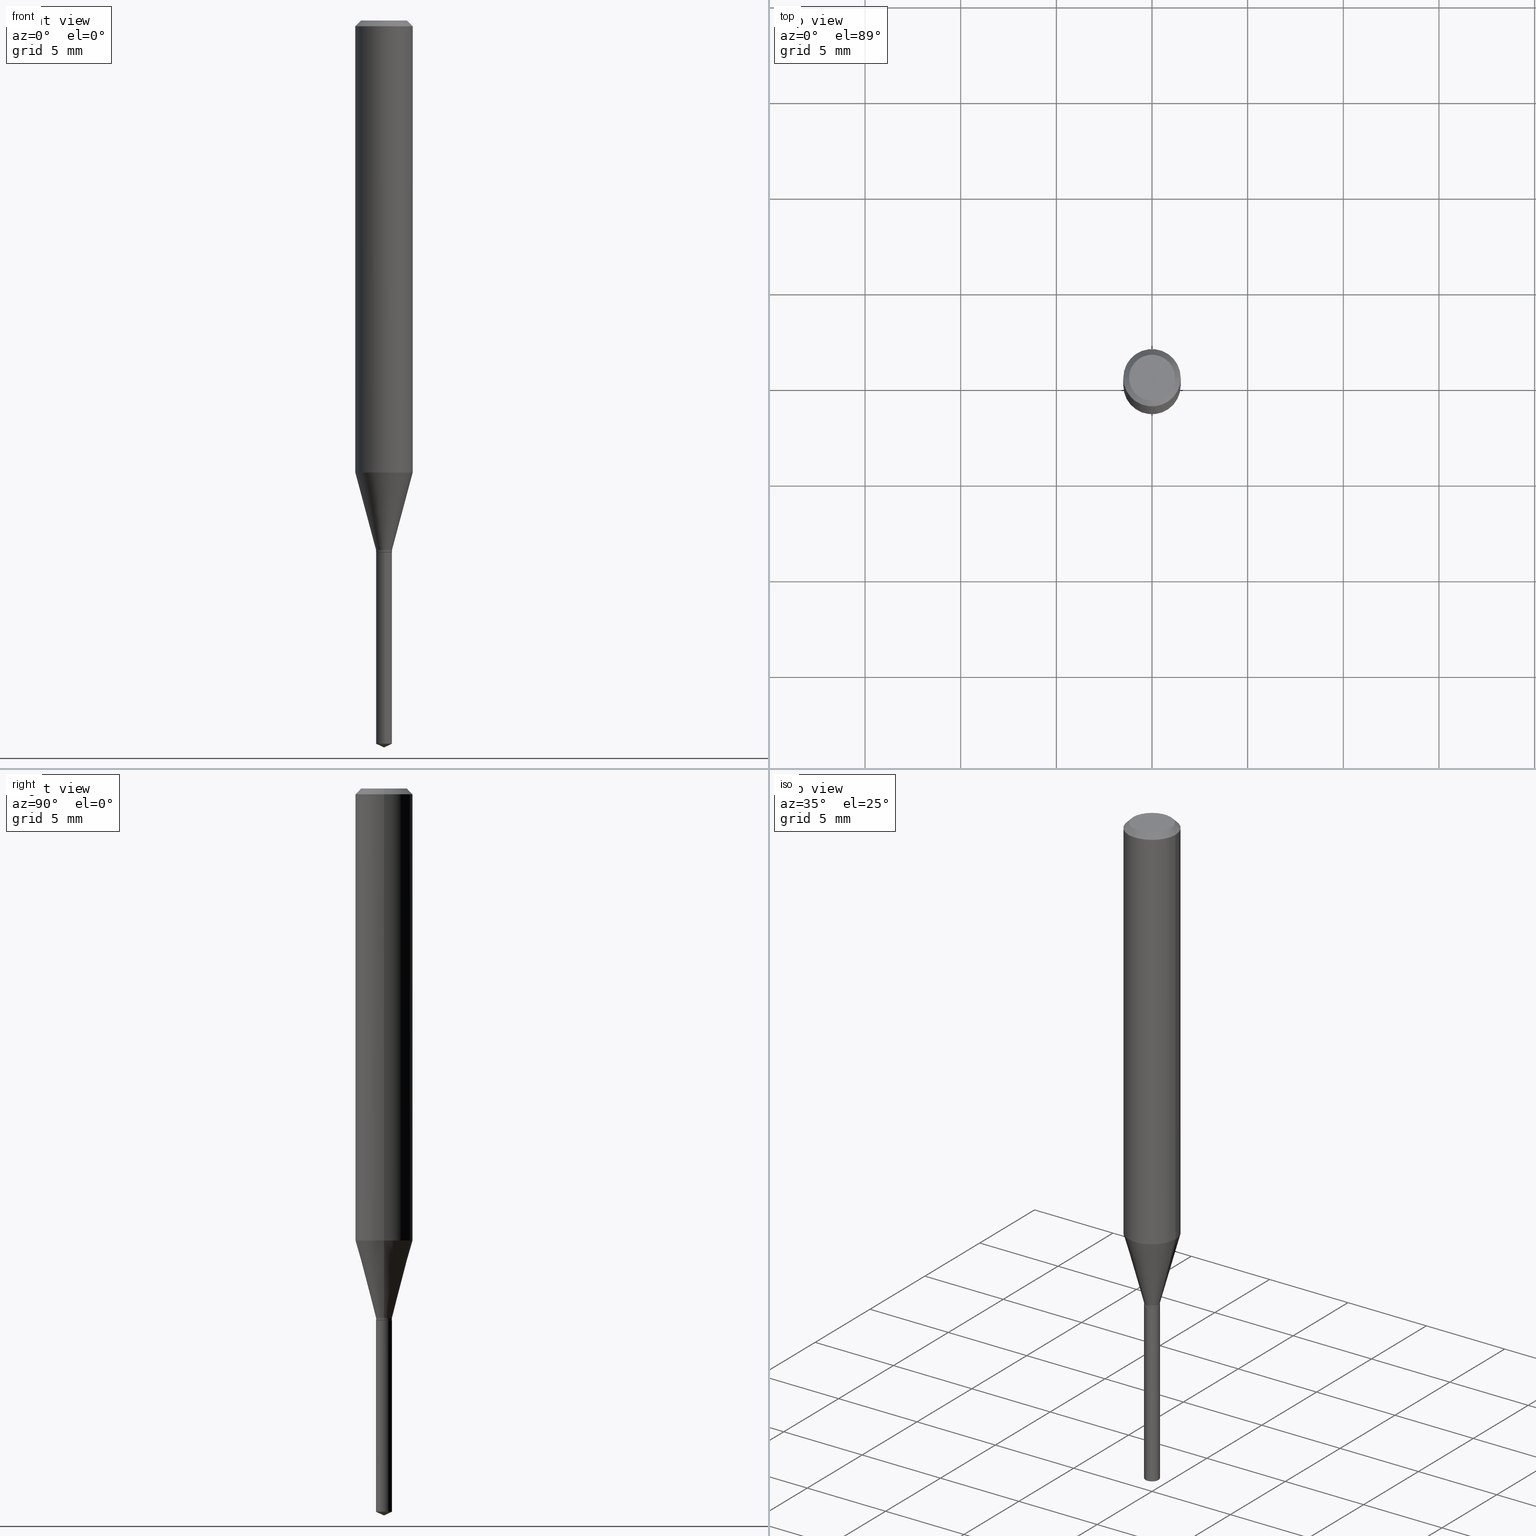
[diagram: canonical four-view strip — front | top / right | iso, engineering-drawing reading convention]
A machine part, canonical four-view strip (front | top / right | iso — engineering-drawing reading convention). The complete STEP part file that produces these views, byte-faithful:
ISO-10303-21;
HEADER;
FILE_DESCRIPTION (( 'STEP AP203' ),
    '1' );
FILE_NAME ('07460.STEP',
    '2024-04-23T21:41:19',
    ( '' ),
    ( '' ),
    'SwSTEP 2.0',
    'SolidWorks 2023',
    '' );
FILE_SCHEMA (( 'CONFIG_CONTROL_DESIGN' ));
ENDSEC;

DATA;
#1 = DATE_TIME_ROLE ( 'creation_date' ) ;
#2 = EDGE_CURVE ( 'NONE', #241, #392, #281, .T. ) ;
#3 = ORIENTED_EDGE ( 'NONE', *, *, #481, .F. ) ;
#4 = ADVANCED_FACE ( 'NONE', ( #132 ), #276, .T. ) ;
#5 = ORIENTED_EDGE ( 'NONE', *, *, #70, .F. ) ;
#6 = AXIS2_PLACEMENT_3D ( 'NONE', #161, #461, #455 ) ;
#7 = CC_DESIGN_APPROVAL ( #93, ( #312 ) ) ;
#8 = LINE ( 'NONE', #52, #367 ) ;
#9 = COORDINATED_UNIVERSAL_TIME_OFFSET ( 5, 0, .BEHIND. ) ;
#10 = CARTESIAN_POINT ( 'NONE',  ( -0.05904999999999999832, 3.711095515056362547E-16, -0.01181000000000006871 ) ) ;
#11 = PERSON_AND_ORGANIZATION ( #106, #94 ) ;
#12 = EDGE_LOOP ( 'NONE', ( #171, #358, #355, #436 ) ) ;
#13 = ORIENTED_EDGE ( 'NONE', *, *, #206, .F. ) ;
#14 = CARTESIAN_POINT ( 'NONE',  ( 0.05905000000000005383, -4.123439461173744271E-16, 2.879382386107502672E-30 ) ) ;
#15 = CC_DESIGN_PERSON_AND_ORGANIZATION_ASSIGNMENT ( #369, #23, ( #317 ) ) ;
#16 = ORIENTED_EDGE ( 'NONE', *, *, #37, .F. ) ;
#17 = CARTESIAN_POINT ( 'NONE',  ( 2.664582811219324806E-29, -3.804318066803491249E-15, -1.089600000000000124 ) ) ;
#18 = AXIS2_PLACEMENT_3D ( 'NONE', #235, #384, #458 ) ;
#19 = CONICAL_SURFACE ( 'NONE', #105, 84.42940631927518780, 1.134464013796319781 ) ;
#20 = CC_DESIGN_DATE_AND_TIME_ASSIGNMENT ( #478, #173, ( #211 ) ) ;
#21 = DIRECTION ( 'NONE',  ( -2.445468806185136597E-29, 3.491481338843145583E-15, 1.000000000000000000 ) ) ;
#22 = CARTESIAN_POINT ( 'NONE',  ( 0.01634999999999999995, -3.918489506583662316E-15, -1.089600000000000124 ) ) ;
#23 = PERSON_AND_ORGANIZATION_ROLE ( 'design_supplier' ) ;
#24 = EDGE_LOOP ( 'NONE', ( #166, #285, #214 ) ) ;
#25 = DIRECTION ( 'NONE',  ( 1.000000000000000000, -6.982962677686266711E-15, 4.876176775795935793E-29 ) ) ;
#26 = PERSON_AND_ORGANIZATION ( #106, #94 ) ;
#27 = DIRECTION ( 'NONE',  ( -6.982962677686265922E-15, -1.000000000000000000, 0.000000000000000000 ) ) ;
#28 = CC_DESIGN_PERSON_AND_ORGANIZATION_ASSIGNMENT ( #26, #185, ( #211 ) ) ;
#29 = CIRCLE ( 'NONE', #18, 0.01634999999999999648 ) ;
#30 = CONICAL_SURFACE ( 'NONE', #334, 0.01634999999999999995, 0.2617993877991500740 ) ;
#31 = LINE ( 'NONE', #261, #488 ) ;
#32 = EDGE_CURVE ( 'NONE', #383, #392, #279, .T. ) ;
#33 = FACE_OUTER_BOUND ( 'NONE', #468, .T. ) ;
#34 = DIRECTION ( 'NONE',  ( 1.000000000000000000, -6.982962677686270655E-15, 0.000000000000000000 ) ) ;
#35 = AXIS2_PLACEMENT_3D ( 'NONE', #406, #303, #190 ) ;
#36 = DIRECTION ( 'NONE',  ( 1.000000000000000000, -6.982962677686270655E-15, 0.000000000000000000 ) ) ;
#37 = EDGE_CURVE ( 'NONE', #252, #182, #77, .T. ) ;
#38 = EDGE_CURVE ( 'NONE', #383, #101, #307, .T. ) ;
#39 = FACE_OUTER_BOUND ( 'NONE', #208, .T. ) ;
#40 = COORDINATED_UNIVERSAL_TIME_OFFSET ( 5, 0, .BEHIND. ) ;
#41 = ADVANCED_FACE ( 'NONE', ( #416 ), #64, .T. ) ;
#42 = ORIENTED_EDGE ( 'NONE', *, *, #363, .F. ) ;
#43 = CIRCLE ( 'NONE', #357, 0.01584999999999999951 ) ;
#44 = AXIS2_PLACEMENT_3D ( 'NONE', #54, #68, #167 ) ;
#45 = PLANE ( 'NONE',  #6 ) ;
#46 = PERSON_AND_ORGANIZATION ( #106, #94 ) ;
#47 = VERTEX_POINT ( 'NONE', #308 ) ;
#48 = ORIENTED_EDGE ( 'NONE', *, *, #206, .T. ) ;
#49 = VERTEX_POINT ( 'NONE', #318 ) ;
#50 = AXIS2_PLACEMENT_3D ( 'NONE', #183, #401, #99 ) ;
#51 = CIRCLE ( 'NONE', #35, 0.01634999999999999995 ) ;
#52 = CARTESIAN_POINT ( 'NONE',  ( 0.01634999999999999648, -1.141714397801704256E-16, 7.972549028426353368E-31 ) ) ;
#53 = CARTESIAN_POINT ( 'NONE',  ( -9.261968845786000133E-28, 1.322362114038720264E-13, 37.87397874015748300 ) ) ;
#54 = CARTESIAN_POINT ( 'NONE',  ( 2.888098660104663328E-31, -4.123439461173779030E-17, -0.01181000000000006871 ) ) ;
#55 = DATE_AND_TIME ( #110, #97 ) ;
#56 = CARTESIAN_POINT ( 'NONE',  ( 2.676565608369632355E-29, -3.821426325363822773E-15, -1.094500000000000028 ) ) ;
#57 = DIRECTION ( 'NONE',  ( -2.445470214571802116E-29, 3.491479321953280158E-15, 1.000000000000000000 ) ) ;
#58 = DIRECTION ( 'NONE',  ( -0.7071067811865453523, 2.468850131082234184E-15, -0.7071067811865496822 ) ) ;
#59 = EDGE_CURVE ( 'NONE', #429, #223, #315, .T. ) ;
#60 = ORIENTED_EDGE ( 'NONE', *, *, #359, .F. ) ;
#61 = CYLINDRICAL_SURFACE ( 'NONE', #119, 0.01634999999999999648 ) ;
#62 = CARTESIAN_POINT ( 'NONE',  ( 2.274876400549894550E-29, -3.247920595268191429E-15, -0.9302414305168089648 ) ) ;
#63 = ADVANCED_FACE ( 'NONE', ( #83 ), #333, .T. ) ;
#64 = CONICAL_SURFACE ( 'NONE', #343, 0.01584999999999999951, 0.7853981633972733079 ) ;
#65 = ORIENTED_EDGE ( 'NONE', *, *, #225, .F. ) ;
#66 = CC_DESIGN_PERSON_AND_ORGANIZATION_ASSIGNMENT ( #435, #445, ( #317 ) ) ;
#67 = CARTESIAN_POINT ( 'NONE',  ( 2.888098660104663328E-31, -4.123439461173779030E-17, -0.01181000000000006871 ) ) ;
#68 = DIRECTION ( 'NONE',  ( 2.445468806185136597E-29, -3.491481338843145583E-15, -1.000000000000000000 ) ) ;
#69 = PERSON_AND_ORGANIZATION ( #106, #94 ) ;
#70 = EDGE_CURVE ( 'NONE', #223, #429, #29, .T. ) ;
#71 = CYLINDRICAL_SURFACE ( 'NONE', #148, 0.01634999999999999995 ) ;
#72 =( GEOMETRIC_REPRESENTATION_CONTEXT ( 3 ) GLOBAL_UNCERTAINTY_ASSIGNED_CONTEXT ( ( #128 ) ) GLOBAL_UNIT_ASSIGNED_CONTEXT ( ( #268, #321, #424 ) ) REPRESENTATION_CONTEXT ( 'NONE', 'WORKASPACE' ) );
#73 = DIRECTION ( 'NONE',  ( -2.445468806185136877E-29, 3.491481338843145188E-15, 1.000000000000000000 ) ) ;
#74 = ADVANCED_FACE ( 'NONE', ( #39 ), #198, .F. ) ;
#75 = CARTESIAN_POINT ( 'NONE',  ( -9.261968845786000133E-28, 1.322362114038720264E-13, 37.87397874015748300 ) ) ;
#76 = CARTESIAN_POINT ( 'NONE',  ( -1.141714397801436783E-16, -0.01635000000000381981, -1.094499999999999806 ) ) ;
#77 = CIRCLE ( 'NONE', #453, 0.01584999999999999951 ) ;
#78 = LOCAL_TIME ( 17, 41, 19.00000000000000000, #40 ) ;
#79 = CARTESIAN_POINT ( 'NONE',  ( 0.05904999999999999832, -4.535783407291118600E-16, -0.01181000000000006871 ) ) ;
#80 = ORIENTED_EDGE ( 'NONE', *, *, #341, .F. ) ;
#81 = AXIS2_PLACEMENT_3D ( 'NONE', #388, #354, #419 ) ;
#82 = VECTOR ( 'NONE', #140, 39.37007874015748143 ) ;
#83 = FACE_OUTER_BOUND ( 'NONE', #12, .T. ) ;
#84 = CARTESIAN_POINT ( 'NONE',  ( 0.000000000000000000, 0.000000000000000000, 0.000000000000000000 ) ) ;
#85 = ORIENTED_EDGE ( 'NONE', *, *, #398, .T. ) ;
#86 = DIRECTION ( 'NONE',  ( 1.000000000000000000, -6.982962677686269077E-15, 0.000000000000000000 ) ) ;
#87 = ORIENTED_EDGE ( 'NONE', *, *, #253, .F. ) ;
#88 = EDGE_CURVE ( 'NONE', #49, #456, #380, .T. ) ;
#89 = CARTESIAN_POINT ( 'NONE',  ( 1.161737372968127416E-16, 0.01634999999999479925, -1.488475869789165795 ) ) ;
#90 = CALENDAR_DATE ( 2024, 23, 4 ) ;
#91 = DIRECTION ( 'NONE',  ( -2.445468806185136877E-29, 3.491481338843145188E-15, 1.000000000000000000 ) ) ;
#92 = EDGE_CURVE ( 'NONE', #429, #238, #8, .T. ) ;
#93 = APPROVAL ( #159, 'UNSPECIFIED' ) ;
#94 = ORGANIZATION ( 'UNSPECIFIED', 'UNSPECIFIED', '' ) ;
#95 = DIRECTION ( 'NONE',  ( -2.445468806185136877E-29, 3.491481338843145188E-15, 1.000000000000000000 ) ) ;
#96 = COORDINATED_UNIVERSAL_TIME_OFFSET ( 5, 0, .BEHIND. ) ;
#97 = LOCAL_TIME ( 17, 41, 19.00000000000000000, #254 ) ;
#98 = EDGE_LOOP ( 'NONE', ( #85, #351, #275, #311 ) ) ;
#99 = DIRECTION ( 'NONE',  ( -6.982962677686265922E-15, -1.000000000000000000, 0.000000000000000000 ) ) ;
#100 = APPLICATION_CONTEXT ( 'configuration controlled 3d designs of mechanical parts and assemblies' ) ;
#101 = VERTEX_POINT ( 'NONE', #310 ) ;
#102 = FACE_OUTER_BOUND ( 'NONE', #464, .T. ) ;
#103 = EDGE_LOOP ( 'NONE', ( #319, #16 ) ) ;
#104 = CARTESIAN_POINT ( 'NONE',  ( -0.01634999999999999648, -3.695825588452169658E-15, -1.093999999999999861 ) ) ;
#105 = AXIS2_PLACEMENT_3D ( 'NONE', #75, #412, #150 ) ;
#106 = PERSON ( 'UNSPECIFIED', 'UNSPECIFIED', 'UNSPECIFIED', ('UNSPECIFIED'), ('UNSPECIFIED'), ('UNSPECIFIED') ) ;
#107 = DIRECTION ( 'NONE',  ( -0.2588190451025213501, 5.211531920934551042E-15, 0.9659258262890682012 ) ) ;
#108 = CARTESIAN_POINT ( 'NONE',  ( 8.265746106709734507E-48, -1.180129479067563789E-33, -3.380025165646692144E-19 ) ) ;
#109 = CARTESIAN_POINT ( 'NONE',  ( 0.01634999999999999648, -3.933852024474571547E-15, -1.093999999999999861 ) ) ;
#110 = CALENDAR_DATE ( 2024, 23, 4 ) ;
#111 = DIRECTION ( 'NONE',  ( -2.445470214571802396E-29, 3.491479321953280158E-15, 1.000000000000000000 ) ) ;
#112 = VECTOR ( 'NONE', #434, 39.37007874015748854 ) ;
#113 = ADVANCED_FACE ( 'NONE', ( #426 ), #45, .F. ) ;
#114 = DIRECTION ( 'NONE',  ( 1.000000000000000000, -6.982962677686265922E-15, 4.876176775795935793E-29 ) ) ;
#115 = EDGE_CURVE ( 'NONE', #182, #252, #43, .T. ) ;
#116 = LINE ( 'NONE', #410, #269 ) ;
#117 = DIRECTION ( 'NONE',  ( -2.445470214571802396E-29, 3.491479321953280158E-15, 1.000000000000000000 ) ) ;
#118 = AXIS2_PLACEMENT_3D ( 'NONE', #489, #360, #271 ) ;
#119 = AXIS2_PLACEMENT_3D ( 'NONE', #218, #21, #179 ) ;
#120 = APPROVAL_PERSON_ORGANIZATION ( #69, #349, #295 ) ;
#121 = DIRECTION ( 'NONE',  ( -2.445468806185136597E-29, 3.491481338843145583E-15, 1.000000000000000000 ) ) ;
#122 = ADVANCED_FACE ( 'NONE', ( #131 ), #346, .T. ) ;
#123 = CARTESIAN_POINT ( 'NONE',  ( 2.676565608369632355E-29, -3.821426325363822773E-15, -1.094500000000000028 ) ) ;
#124 = ORIENTED_EDGE ( 'NONE', *, *, #2, .T. ) ;
#125 = DIRECTION ( 'NONE',  ( 6.982962677686265922E-15, 1.000000000000000000, -3.491479321953280158E-15 ) ) ;
#126 = DATE_AND_TIME ( #199, #78 ) ;
#127 = VERTEX_POINT ( 'NONE', #89 ) ;
#128 = UNCERTAINTY_MEASURE_WITH_UNIT (LENGTH_MEASURE( 1.000000000000000082E-05 ), #268, 'distance_accuracy_value', 'NONE');
#129 = AXIS2_PLACEMENT_3D ( 'NONE', #278, #423, #86 ) ;
#130 = AXIS2_PLACEMENT_3D ( 'NONE', #395, #180, #25 ) ;
#131 = FACE_OUTER_BOUND ( 'NONE', #353, .T. ) ;
#132 = FACE_OUTER_BOUND ( 'NONE', #157, .T. ) ;
#133 = DIRECTION ( 'NONE',  ( 0.000000000000000000, 0.000000000000000000, 1.000000000000000000 ) ) ;
#134 = EDGE_CURVE ( 'NONE', #293, #238, #407, .T. ) ;
#135 = ORIENTED_EDGE ( 'NONE', *, *, #92, .F. ) ;
#136 = DIRECTION ( 'NONE',  ( -2.445468806185136597E-29, 3.491481338843145583E-15, 1.000000000000000000 ) ) ;
#137 = EDGE_LOOP ( 'NONE', ( #3, #425, #433, #475 ) ) ;
#138 = EDGE_LOOP ( 'NONE', ( #65, #326, #314, #422 ) ) ;
#139 = AXIS2_PLACEMENT_3D ( 'NONE', #108, #227, #242 ) ;
#140 = DIRECTION ( 'NONE',  ( -0.7071067811864237829, 7.493145998869907665E-15, 0.7071067811866712516 ) ) ;
#141 = DIRECTION ( 'NONE',  ( -2.445468806185136597E-29, 3.491481338843145583E-15, 1.000000000000000000 ) ) ;
#142 = FACE_OUTER_BOUND ( 'NONE', #296, .T. ) ;
#143 = CALENDAR_DATE ( 2024, 23, 4 ) ;
#144 = DESIGN_CONTEXT ( 'detailed design', #100, 'design' ) ;
#145 = ORIENTED_EDGE ( 'NONE', *, *, #88, .T. ) ;
#146 = CARTESIAN_POINT ( 'NONE',  ( -0.01634999999999999995, -3.688144329506715042E-15, -1.089600000000000124 ) ) ;
#147 = APPROVAL_STATUS ( 'not_yet_approved' ) ;
#148 = AXIS2_PLACEMENT_3D ( 'NONE', #444, #381, #231 ) ;
#149 = LOCAL_TIME ( 17, 41, 19.00000000000000000, #404 ) ;
#150 = DIRECTION ( 'NONE',  ( -6.982962677686266711E-15, -1.000000000000000000, 3.520397390770418371E-15 ) ) ;
#151 = CARTESIAN_POINT ( 'NONE',  ( 2.664582811219324806E-29, -3.804318066803491249E-15, -1.089600000000000124 ) ) ;
#152 = LENGTH_MEASURE_WITH_UNIT ( LENGTH_MEASURE( 0.02539999999999999897 ), #196 );
#153 = FACE_OUTER_BOUND ( 'NONE', #138, .T. ) ;
#154 = APPROVAL ( #313, 'UNSPECIFIED' ) ;
#155 = CARTESIAN_POINT ( 'NONE',  ( 0.05904999999999999832, -4.463468013801466955E-16, -0.01181000000000006871 ) ) ;
#156 = CIRCLE ( 'NONE', #263, 0.05905000000000010935 ) ;
#157 = EDGE_LOOP ( 'NONE', ( #42, #323, #60 ) ) ;
#158 = DIRECTION ( 'NONE',  ( 1.000000000000000000, -6.982962677686269077E-15, 0.000000000000000000 ) ) ;
#159 = APPROVAL_STATUS ( 'not_yet_approved' ) ;
#160 = ORIENTED_EDGE ( 'NONE', *, *, #341, .T. ) ;
#161 = CARTESIAN_POINT ( 'NONE',  ( -3.909904953069434821E-29, -1.325362704796803838E-14, -1.094500000000000028 ) ) ;
#162 = ORIENTED_EDGE ( 'NONE', *, *, #189, .T. ) ;
#163 = CIRCLE ( 'NONE', #50, 0.01634999999999999995 ) ;
#164 = AXIS2_PLACEMENT_3D ( 'NONE', #397, #57, #27 ) ;
#165 = DIRECTION ( 'NONE',  ( -2.445468806185136877E-29, 3.491481338843145188E-15, 1.000000000000000000 ) ) ;
#166 = ORIENTED_EDGE ( 'NONE', *, *, #250, .F. ) ;
#167 = DIRECTION ( 'NONE',  ( -1.000000000000000000, 6.982962677686266711E-15, 0.000000000000000000 ) ) ;
#168 = APPROVAL_ROLE ( '' ) ;
#169 = EDGE_LOOP ( 'NONE', ( #329, #460, #324, #245 ) ) ;
#170 = ADVANCED_FACE ( 'NONE', ( #226 ), #441, .F. ) ;
#171 = ORIENTED_EDGE ( 'NONE', *, *, #322, .F. ) ;
#172 = LINE ( 'NONE', #22, #202 ) ;
#173 = DATE_TIME_ROLE ( 'classification_date' ) ;
#174 = ORIENTED_EDGE ( 'NONE', *, *, #442, .F. ) ;
#175 = VECTOR ( 'NONE', #91, 39.37007874015748143 ) ;
#176 = VECTOR ( 'NONE', #95, 39.37007874015748143 ) ;
#177 = CARTESIAN_POINT ( 'NONE',  ( 4.132873053354867254E-48, -5.900647395337818946E-34, -1.690012582823346072E-19 ) ) ;
#178 = ORIENTED_EDGE ( 'NONE', *, *, #402, .T. ) ;
#179 = DIRECTION ( 'NONE',  ( 1.000000000000000000, -6.982962677686265922E-15, 4.876176775795935793E-29 ) ) ;
#180 = DIRECTION ( 'NONE',  ( -2.445468806185136597E-29, 3.491481338843145583E-15, 1.000000000000000000 ) ) ;
#181 = SHAPE_DEFINITION_REPRESENTATION ( #374, #255 ) ;
#182 = VERTEX_POINT ( 'NONE', #400 ) ;
#183 = CARTESIAN_POINT ( 'NONE',  ( 3.640021863199055289E-29, -5.196984928081253021E-15, -1.488475869789165795 ) ) ;
#184 = DIRECTION ( 'NONE',  ( -2.445468806185136597E-29, 3.491481338843145583E-15, 1.000000000000000000 ) ) ;
#185 = PERSON_AND_ORGANIZATION_ROLE ( 'classification_officer' ) ;
#186 = AXIS2_PLACEMENT_3D ( 'NONE', #151, #379, #34 ) ;
#187 = FACE_OUTER_BOUND ( 'NONE', #200, .T. ) ;
#188 = FACE_OUTER_BOUND ( 'NONE', #98, .T. ) ;
#189 = EDGE_CURVE ( 'NONE', #127, #47, #163, .T. ) ;
#190 = DIRECTION ( 'NONE',  ( -6.982962677686265922E-15, -1.000000000000000000, 0.000000000000000000 ) ) ;
#191 = AXIS2_PLACEMENT_3D ( 'NONE', #177, #283, #289 ) ;
#192 = PRODUCT ( '07460', '07460', '', ( #356 ) ) ;
#193 = CIRCLE ( 'NONE', #239, 0.05904999999999999832 ) ;
#194 = VECTOR ( 'NONE', #107, 39.37007874015747433 ) ;
#195 = CC_DESIGN_APPROVAL ( #349, ( #211 ) ) ;
#196 =( LENGTH_UNIT ( ) NAMED_UNIT ( * ) SI_UNIT ( $, .METRE. ) );
#197 = FACE_OUTER_BOUND ( 'NONE', #137, .T. ) ;
#198 = PLANE ( 'NONE',  #411 ) ;
#199 = CALENDAR_DATE ( 2024, 23, 4 ) ;
#200 = EDGE_LOOP ( 'NONE', ( #365, #396, #469, #174 ) ) ;
#201 = AXIS2_PLACEMENT_3D ( 'NONE', #438, #430, #403 ) ;
#202 = VECTOR ( 'NONE', #221, 39.37007874015747433 ) ;
#203 = DIMENSIONAL_EXPONENTS ( 1.000000000000000000, 0.000000000000000000, 0.000000000000000000, 0.000000000000000000, 0.000000000000000000, 0.000000000000000000, 0.000000000000000000 ) ;
#204 = PERSON_AND_ORGANIZATION_ROLE ( 'creator' ) ;
#205 = ORIENTED_EDGE ( 'NONE', *, *, #38, .F. ) ;
#206 = EDGE_CURVE ( 'NONE', #456, #49, #391, .T. ) ;
#207 = CARTESIAN_POINT ( 'NONE',  ( 2.676565608369631794E-29, -3.821426325363822773E-15, -1.094499999999999806 ) ) ;
#208 = EDGE_LOOP ( 'NONE', ( #145, #48 ) ) ;
#209 = DIRECTION ( 'NONE',  ( 2.445470214571801836E-29, -3.491479321953280158E-15, -1.000000000000000000 ) ) ;
#210 = ORIENTED_EDGE ( 'NONE', *, *, #442, .T. ) ;
#211 = SECURITY_CLASSIFICATION ( '', '', #372 ) ;
#212 = CARTESIAN_POINT ( 'NONE',  ( 2.676565608369632355E-29, -3.821426325363822773E-15, -1.094500000000000028 ) ) ;
#213 = DIRECTION ( 'NONE',  ( -2.445470214571802116E-29, 3.491479321953280158E-15, 1.000000000000000000 ) ) ;
#214 = ORIENTED_EDGE ( 'NONE', *, *, #189, .F. ) ;
#215 = DIRECTION ( 'NONE',  ( 0.7071067811864237829, -2.468850131080960568E-15, 0.7071067811866712516 ) ) ;
#216 = EDGE_CURVE ( 'NONE', #432, #392, #471, .T. ) ;
#217 = LINE ( 'NONE', #146, #194 ) ;
#218 = CARTESIAN_POINT ( 'NONE',  ( 0.000000000000000000, 0.000000000000000000, 0.000000000000000000 ) ) ;
#219 = AXIS2_PLACEMENT_3D ( 'NONE', #17, #136, #332 ) ;
#220 = CIRCLE ( 'NONE', #484, 0.05905000000000010935 ) ;
#221 = DIRECTION ( 'NONE',  ( 0.2588190451025213501, 1.565188264969621968E-15, 0.9659258262890682012 ) ) ;
#222 = APPROVAL_DATE_TIME ( #126, #154 ) ;
#223 = VERTEX_POINT ( 'NONE', #104 ) ;
#224 = CYLINDRICAL_SURFACE ( 'NONE', #130, 0.05905000000000005383 ) ;
#225 = EDGE_CURVE ( 'NONE', #293, #241, #217, .T. ) ;
#226 = FACE_OUTER_BOUND ( 'NONE', #399, .T. ) ;
#227 = DIRECTION ( 'NONE',  ( -2.445468806185136597E-29, 3.491481338843145583E-15, 1.000000000000000000 ) ) ;
#228 = FACE_OUTER_BOUND ( 'NONE', #24, .T. ) ;
#229 = CYLINDRICAL_SURFACE ( 'NONE', #375, 0.05905000000000005383 ) ;
#230 = EDGE_CURVE ( 'NONE', #241, #473, #220, .T. ) ;
#231 = DIRECTION ( 'NONE',  ( -6.982962677686265922E-15, -1.000000000000000000, 0.000000000000000000 ) ) ;
#232 = CARTESIAN_POINT ( 'NONE',  ( -0.04724000000000000421, 3.504923541997677355E-16, -3.380025165670481712E-19 ) ) ;
#233 = VECTOR ( 'NONE', #111, 39.37007874015748143 ) ;
#234 = DIRECTION ( 'NONE',  ( -2.445468806185136597E-29, 3.491481338843145583E-15, 1.000000000000000000 ) ) ;
#235 = CARTESIAN_POINT ( 'NONE',  ( 2.675342873966538993E-29, -3.819680584694400481E-15, -1.093999999999999861 ) ) ;
#236 = ORIENTED_EDGE ( 'NONE', *, *, #59, .F. ) ;
#237 = DIRECTION ( 'NONE',  ( 1.000000000000000000, -6.982962677686272233E-15, 0.000000000000000000 ) ) ;
#238 = VERTEX_POINT ( 'NONE', #366 ) ;
#239 = AXIS2_PLACEMENT_3D ( 'NONE', #409, #482, #301 ) ;
#240 = DIRECTION ( 'NONE',  ( 1.000000000000000000, -6.982962677686269077E-15, 0.000000000000000000 ) ) ;
#241 = VERTEX_POINT ( 'NONE', #292 ) ;
#242 = DIRECTION ( 'NONE',  ( 1.000000000000000000, -6.982962677686266711E-15, 4.876185090822587894E-29 ) ) ;
#243 = ORIENTED_EDGE ( 'NONE', *, *, #339, .F. ) ;
#244 = DATE_AND_TIME ( #90, #408 ) ;
#245 = ORIENTED_EDGE ( 'NONE', *, *, #402, .F. ) ;
#246 = ORIENTED_EDGE ( 'NONE', *, *, #322, .T. ) ;
#247 = CONICAL_SURFACE ( 'NONE', #44, 0.05904999999999999832, 0.7853981633974452814 ) ;
#248 = DIRECTION ( 'NONE',  ( -2.445468806185136597E-29, 3.491481338843145583E-15, 1.000000000000000000 ) ) ;
#249 = PERSON_AND_ORGANIZATION ( #106, #94 ) ;
#250 = EDGE_CURVE ( 'NONE', #370, #127, #328, .T. ) ;
#251 = CARTESIAN_POINT ( 'NONE',  ( 8.265746106709734507E-48, -1.180129479067563789E-33, -3.380025165646692144E-19 ) ) ;
#252 = VERTEX_POINT ( 'NONE', #474 ) ;
#253 = EDGE_CURVE ( 'NONE', #473, #432, #299, .T. ) ;
#254 = COORDINATED_UNIVERSAL_TIME_OFFSET ( 5, 0, .BEHIND. ) ;
#255 = ADVANCED_BREP_SHAPE_REPRESENTATION ( '07460', ( #290, #302, #309 ), #72 ) ;
#256 = ORIENTED_EDGE ( 'NONE', *, *, #216, .F. ) ;
#257 = CLOSED_SHELL ( 'NONE', ( #350, #4, #443, #457, #74 ) ) ;
#258 = DIRECTION ( 'NONE',  ( 1.000000000000000000, -6.982962677686266711E-15, 0.000000000000000000 ) ) ;
#259 = DIRECTION ( 'NONE',  ( 1.000000000000000000, -6.982962677686266711E-15, 4.876185090822587894E-29 ) ) ;
#260 = LINE ( 'NONE', #447, #233 ) ;
#261 = CARTESIAN_POINT ( 'NONE',  ( -0.01634999999999999648, 1.161737372967763554E-16, -8.042458872566769714E-31 ) ) ;
#262 = AXIS2_PLACEMENT_3D ( 'NONE', #67, #477, #258 ) ;
#263 = AXIS2_PLACEMENT_3D ( 'NONE', #331, #437, #325 ) ;
#264 = DIRECTION ( 'NONE',  ( -2.445468806185136597E-29, 3.491481338843145583E-15, 1.000000000000000000 ) ) ;
#265 = LINE ( 'NONE', #155, #344 ) ;
#266 = CARTESIAN_POINT ( 'NONE',  ( 2.664582811219324806E-29, -3.804318066803491249E-15, -1.089600000000000124 ) ) ;
#267 = AXIS2_PLACEMENT_3D ( 'NONE', #280, #121, #237 ) ;
#268 =( CONVERSION_BASED_UNIT ( 'INCH', #152 ) LENGTH_UNIT ( ) NAMED_UNIT ( #203 ) );
#269 = VECTOR ( 'NONE', #342, 39.37007874015748854 ) ;
#270 = ADVANCED_FACE ( 'NONE', ( #102 ), #224, .T. ) ;
#271 = DIRECTION ( 'NONE',  ( -1.000000000000000000, 6.982962677686266711E-15, 0.000000000000000000 ) ) ;
#272 = DIRECTION ( 'NONE',  ( -2.445468806185136597E-29, 3.491481338843145583E-15, 1.000000000000000000 ) ) ;
#273 = PERSON_AND_ORGANIZATION ( #106, #94 ) ;
#274 = ORIENTED_EDGE ( 'NONE', *, *, #115, .T. ) ;
#275 = ORIENTED_EDGE ( 'NONE', *, *, #327, .F. ) ;
#276 = CONICAL_SURFACE ( 'NONE', #487, 84.42940631927518780, 1.134464013796319781 ) ;
#277 = CIRCLE ( 'NONE', #472, 0.04724000000000000421 ) ;
#278 = CARTESIAN_POINT ( 'NONE',  ( 2.676565608369632355E-29, -3.821426325363822773E-15, -1.094500000000000028 ) ) ;
#279 = LINE ( 'NONE', #10, #297 ) ;
#280 = CARTESIAN_POINT ( 'NONE',  ( 2.675342873966538993E-29, -3.819680584694400481E-15, -1.093999999999999861 ) ) ;
#281 = LINE ( 'NONE', #428, #175 ) ;
#282 = ORIENTED_EDGE ( 'NONE', *, *, #327, .T. ) ;
#283 = DIRECTION ( 'NONE',  ( 2.438088387897960049E-29, -3.491481338843145188E-15, -1.000000000000000000 ) ) ;
#284 = APPLICATION_PROTOCOL_DEFINITION ( 'international standard', 'config_control_design', 1994, #100 ) ;
#285 = ORIENTED_EDGE ( 'NONE', *, *, #363, .T. ) ;
#286 = EDGE_CURVE ( 'NONE', #238, #473, #172, .T. ) ;
#287 = EDGE_LOOP ( 'NONE', ( #80, #490, #389, #5 ) ) ;
#288 = CC_DESIGN_PERSON_AND_ORGANIZATION_ASSIGNMENT ( #11, #427, ( #192 ) ) ;
#289 = DIRECTION ( 'NONE',  ( -1.000000000000000000, 6.982962677686265922E-15, -4.876176775795935793E-29 ) ) ;
#290 = MANIFOLD_SOLID_BREP ( 'Body-Move/Copy2[1]', #257 ) ;
#291 = ORIENTED_EDGE ( 'NONE', *, *, #398, .F. ) ;
#292 = CARTESIAN_POINT ( 'NONE',  ( -0.05905000000000010935, -2.828345109801851148E-15, -0.9302414305168089648 ) ) ;
#293 = VERTEX_POINT ( 'NONE', #368 ) ;
#294 = LINE ( 'NONE', #373, #304 ) ;
#295 = APPROVAL_ROLE ( '' ) ;
#296 = EDGE_LOOP ( 'NONE', ( #386, #205, #387, #210 ) ) ;
#297 = VECTOR ( 'NONE', #58, 39.37007874015748143 ) ;
#298 = APPROVAL_PERSON_ORGANIZATION ( #249, #154, #168 ) ;
#299 = LINE ( 'NONE', #14, #176 ) ;
#300 = FACE_OUTER_BOUND ( 'NONE', #418, .T. ) ;
#301 = DIRECTION ( 'NONE',  ( 1.000000000000000000, -6.982962677686266711E-15, 0.000000000000000000 ) ) ;
#302 = MANIFOLD_SOLID_BREP ( 'Body-Move/Copy2[2]', #440 ) ;
#303 = DIRECTION ( 'NONE',  ( -2.445470214571802116E-29, 3.491479321953280158E-15, 1.000000000000000000 ) ) ;
#304 = VECTOR ( 'NONE', #215, 39.37007874015748143 ) ;
#305 = DIRECTION ( 'NONE',  ( 1.000000000000000000, -6.982962677686266711E-15, 4.876176775795935793E-29 ) ) ;
#306 = DIRECTION ( 'NONE',  ( 0.7071067811865453523, -7.319954787623248157E-15, -0.7071067811865496822 ) ) ;
#307 = CIRCLE ( 'NONE', #139, 0.04724000000000000421 ) ;
#308 = CARTESIAN_POINT ( 'NONE',  ( -1.141714397801340394E-16, -0.01635000000000519371, -1.488475869789165795 ) ) ;
#309 = AXIS2_PLACEMENT_3D ( 'NONE', #84, #133, #467 ) ;
#310 = CARTESIAN_POINT ( 'NONE',  ( 0.04724000000000000421, -3.852183633974369345E-16, -3.380025165621689721E-19 ) ) ;
#311 = ORIENTED_EDGE ( 'NONE', *, *, #286, .F. ) ;
#312 = PRODUCT_DEFINITION ( 'UNKNOWN', '', #317, #144 ) ;
#313 = APPROVAL_STATUS ( 'not_yet_approved' ) ;
#314 = ORIENTED_EDGE ( 'NONE', *, *, #286, .T. ) ;
#315 = CIRCLE ( 'NONE', #267, 0.01634999999999999648 ) ;
#316 = ORIENTED_EDGE ( 'NONE', *, *, #481, .T. ) ;
#317 = PRODUCT_DEFINITION_FORMATION_WITH_SPECIFIED_SOURCE ( 'ANY', '', #192, .NOT_KNOWN. ) ;
#318 = CARTESIAN_POINT ( 'NONE',  ( -1.141714397801436783E-16, -0.01635000000000381981, -1.094499999999999806 ) ) ;
#319 = ORIENTED_EDGE ( 'NONE', *, *, #115, .F. ) ;
#320 = FACE_OUTER_BOUND ( 'NONE', #169, .T. ) ;
#321 =( NAMED_UNIT ( * ) PLANE_ANGLE_UNIT ( ) SI_UNIT ( $, .RADIAN. ) );
#322 = EDGE_CURVE ( 'NONE', #101, #383, #277, .T. ) ;
#323 = ORIENTED_EDGE ( 'NONE', *, *, #250, .T. ) ;
#324 = ORIENTED_EDGE ( 'NONE', *, *, #88, .F. ) ;
#325 = DIRECTION ( 'NONE',  ( 1.000000000000000000, -6.982962677686267499E-15, 0.000000000000000000 ) ) ;
#326 = ORIENTED_EDGE ( 'NONE', *, *, #134, .T. ) ;
#327 = EDGE_CURVE ( 'NONE', #473, #241, #156, .T. ) ;
#328 = LINE ( 'NONE', #371, #112 ) ;
#329 = ORIENTED_EDGE ( 'NONE', *, *, #359, .T. ) ;
#330 = CC_DESIGN_PERSON_AND_ORGANIZATION_ASSIGNMENT ( #46, #204, ( #312 ) ) ;
#331 = CARTESIAN_POINT ( 'NONE',  ( 2.274876400549894550E-29, -3.247920595268191429E-15, -0.9302414305168089648 ) ) ;
#332 = DIRECTION ( 'NONE',  ( 1.000000000000000000, -6.982962677686270655E-15, 0.000000000000000000 ) ) ;
#333 = CONICAL_SURFACE ( 'NONE', #118, 0.05904999999999999832, 0.7853981633974452814 ) ;
#334 = AXIS2_PLACEMENT_3D ( 'NONE', #451, #264, #36 ) ;
#335 = LINE ( 'NONE', #76, #454 ) ;
#336 = APPROVAL_DATE_TIME ( #55, #349 ) ;
#337 = ADVANCED_FACE ( 'NONE', ( #142 ), #247, .T. ) ;
#338 = CYLINDRICAL_SURFACE ( 'NONE', #393, 0.01634999999999999648 ) ;
#339 = EDGE_CURVE ( 'NONE', #182, #429, #294, .T. ) ;
#340 = CARTESIAN_POINT ( 'NONE',  ( 0.000000000000000000, 0.000000000000000000, 0.000000000000000000 ) ) ;
#341 = EDGE_CURVE ( 'NONE', #252, #223, #470, .T. ) ;
#342 = DIRECTION ( 'NONE',  ( -6.328713451373386733E-15, -0.9063077870366508249, 0.4226182617406975539 ) ) ;
#343 = AXIS2_PLACEMENT_3D ( 'NONE', #212, #414, #158 ) ;
#344 = VECTOR ( 'NONE', #306, 39.37007874015748143 ) ;
#345 = CARTESIAN_POINT ( 'NONE',  ( -0.05904999999999999832, -1.225002009473624692E-15, -0.01181000000000006871 ) ) ;
#346 = CONICAL_SURFACE ( 'NONE', #129, 0.01584999999999999951, 0.7853981633972733079 ) ;
#347 = APPROVAL_ROLE ( '' ) ;
#348 = LOCAL_TIME ( 17, 41, 19.00000000000000000, #9 ) ;
#349 = APPROVAL ( #147, 'UNSPECIFIED' ) ;
#350 = ADVANCED_FACE ( 'NONE', ( #320 ), #466, .T. ) ;
#351 = ORIENTED_EDGE ( 'NONE', *, *, #225, .T. ) ;
#352 = CC_DESIGN_SECURITY_CLASSIFICATION ( #211, ( #317 ) ) ;
#353 = EDGE_LOOP ( 'NONE', ( #274, #160, #236, #243 ) ) ;
#354 = DIRECTION ( 'NONE',  ( -2.445470214571802116E-29, 3.491479321953280158E-15, 1.000000000000000000 ) ) ;
#355 = ORIENTED_EDGE ( 'NONE', *, *, #216, .T. ) ;
#356 = MECHANICAL_CONTEXT ( 'NONE', #450, 'mechanical' ) ;
#357 = AXIS2_PLACEMENT_3D ( 'NONE', #123, #272, #240 ) ;
#358 = ORIENTED_EDGE ( 'NONE', *, *, #377, .T. ) ;
#359 = EDGE_CURVE ( 'NONE', #47, #127, #51, .T. ) ;
#360 = DIRECTION ( 'NONE',  ( 2.445468806185136597E-29, -3.491481338843145583E-15, -1.000000000000000000 ) ) ;
#361 = DIRECTION ( 'NONE',  ( -6.982962677686266711E-15, -1.000000000000000000, 3.520397390770418371E-15 ) ) ;
#362 = ORIENTED_EDGE ( 'NONE', *, *, #59, .T. ) ;
#363 = EDGE_CURVE ( 'NONE', #370, #47, #116, .T. ) ;
#364 = CARTESIAN_POINT ( 'NONE',  ( -0.01584999999999999951, -3.708805301745847464E-15, -1.094500000000000028 ) ) ;
#365 = ORIENTED_EDGE ( 'NONE', *, *, #2, .F. ) ;
#366 = CARTESIAN_POINT ( 'NONE',  ( 0.01634999999999999995, -3.918489506583662316E-15, -1.089600000000000124 ) ) ;
#367 = VECTOR ( 'NONE', #165, 39.37007874015748143 ) ;
#368 = CARTESIAN_POINT ( 'NONE',  ( -0.01634999999999999995, -3.695825588452169658E-15, -1.089600000000000124 ) ) ;
#369 = PERSON_AND_ORGANIZATION ( #106, #94 ) ;
#370 = VERTEX_POINT ( 'NONE', #480 ) ;
#371 = CARTESIAN_POINT ( 'NONE',  ( 3.658668015054778287E-29, -5.223602213574301462E-15, -1.496099999999999985 ) ) ;
#372 = SECURITY_CLASSIFICATION_LEVEL ( 'unclassified' ) ;
#373 = CARTESIAN_POINT ( 'NONE',  ( 0.01584999999999999951, -3.932106283805150044E-15, -1.094500000000000028 ) ) ;
#374 = PRODUCT_DEFINITION_SHAPE ( 'NONE', 'NONE',  #312 ) ;
#375 = AXIS2_PLACEMENT_3D ( 'NONE', #340, #184, #305 ) ;
#376 = CARTESIAN_POINT ( 'NONE',  ( 0.05905000000000010935, -3.660264541385565561E-15, -0.9302414305168089648 ) ) ;
#377 = EDGE_CURVE ( 'NONE', #101, #432, #265, .T. ) ;
#378 = ADVANCED_FACE ( 'NONE', ( #187 ), #229, .T. ) ;
#379 = DIRECTION ( 'NONE',  ( -2.445468806185136597E-29, 3.491481338843145583E-15, 1.000000000000000000 ) ) ;
#380 = CIRCLE ( 'NONE', #81, 0.01634999999999999995 ) ;
#381 = DIRECTION ( 'NONE',  ( -2.445470214571802116E-29, 3.491479321953280158E-15, 1.000000000000000000 ) ) ;
#382 = ADVANCED_FACE ( 'NONE', ( #197 ), #338, .T. ) ;
#383 = VERTEX_POINT ( 'NONE', #232 ) ;
#384 = DIRECTION ( 'NONE',  ( -2.445468806185136597E-29, 3.491481338843145583E-15, 1.000000000000000000 ) ) ;
#385 = CONICAL_SURFACE ( 'NONE', #463, 0.01634999999999999995, 0.2617993877991500740 ) ;
#386 = ORIENTED_EDGE ( 'NONE', *, *, #377, .F. ) ;
#387 = ORIENTED_EDGE ( 'NONE', *, *, #32, .T. ) ;
#388 = CARTESIAN_POINT ( 'NONE',  ( 2.676565608369631794E-29, -3.821426325363822773E-15, -1.094499999999999806 ) ) ;
#389 = ORIENTED_EDGE ( 'NONE', *, *, #339, .T. ) ;
#390 = PRODUCT_RELATED_PRODUCT_CATEGORY ( 'detail', '', ( #192 ) ) ;
#391 = CIRCLE ( 'NONE', #201, 0.01634999999999999995 ) ;
#392 = VERTEX_POINT ( 'NONE', #345 ) ;
#393 = AXIS2_PLACEMENT_3D ( 'NONE', #449, #452, #114 ) ;
#394 = ORIENTED_EDGE ( 'NONE', *, *, #38, .T. ) ;
#395 = CARTESIAN_POINT ( 'NONE',  ( 0.000000000000000000, 0.000000000000000000, 0.000000000000000000 ) ) ;
#396 = ORIENTED_EDGE ( 'NONE', *, *, #230, .T. ) ;
#397 = CARTESIAN_POINT ( 'NONE',  ( 2.676565608369631794E-29, -3.821426325363822773E-15, -1.094499999999999806 ) ) ;
#398 = EDGE_CURVE ( 'NONE', #238, #293, #448, .T. ) ;
#399 = EDGE_LOOP ( 'NONE', ( #394, #246 ) ) ;
#400 = CARTESIAN_POINT ( 'NONE',  ( 0.01584999999999999951, -3.932106283805150044E-15, -1.094500000000000028 ) ) ;
#401 = DIRECTION ( 'NONE',  ( -2.445470214571802116E-29, 3.491479321953280158E-15, 1.000000000000000000 ) ) ;
#402 = EDGE_CURVE ( 'NONE', #47, #49, #335, .T. ) ;
#403 = DIRECTION ( 'NONE',  ( -6.982962677686265922E-15, -1.000000000000000000, 0.000000000000000000 ) ) ;
#404 = COORDINATED_UNIVERSAL_TIME_OFFSET ( 5, 0, .BEHIND. ) ;
#405 = CC_DESIGN_DATE_AND_TIME_ASSIGNMENT ( #244, #1, ( #312 ) ) ;
#406 = CARTESIAN_POINT ( 'NONE',  ( 3.640021863199055289E-29, -5.196984928081253021E-15, -1.488475869789165795 ) ) ;
#407 = CIRCLE ( 'NONE', #219, 0.01634999999999999995 ) ;
#408 = LOCAL_TIME ( 17, 41, 19.00000000000000000, #96 ) ;
#409 = CARTESIAN_POINT ( 'NONE',  ( 2.888098660104663328E-31, -4.123439461173779030E-17, -0.01181000000000006871 ) ) ;
#410 = CARTESIAN_POINT ( 'NONE',  ( 3.658664905062460986E-29, -5.223606628546217219E-15, -1.496099999999999985 ) ) ;
#411 = AXIS2_PLACEMENT_3D ( 'NONE', #207, #209, #125 ) ;
#412 = DIRECTION ( 'NONE',  ( -2.445470214571802116E-29, 3.491479321953280158E-15, 1.000000000000000000 ) ) ;
#413 = CC_DESIGN_APPROVAL ( #154, ( #317 ) ) ;
#414 = DIRECTION ( 'NONE',  ( -2.445468806185136597E-29, 3.491481338843145583E-15, 1.000000000000000000 ) ) ;
#415 = ADVANCED_FACE ( 'NONE', ( #188 ), #385, .T. ) ;
#416 = FACE_OUTER_BOUND ( 'NONE', #287, .T. ) ;
#417 = APPROVAL_DATE_TIME ( #459, #93 ) ;
#418 = EDGE_LOOP ( 'NONE', ( #465, #162, #178, #13 ) ) ;
#419 = DIRECTION ( 'NONE',  ( -6.982962677686265922E-15, -1.000000000000000000, 0.000000000000000000 ) ) ;
#420 = ADVANCED_FACE ( 'NONE', ( #153 ), #30, .T. ) ;
#421 = APPROVAL_PERSON_ORGANIZATION ( #273, #93, #347 ) ;
#422 = ORIENTED_EDGE ( 'NONE', *, *, #230, .F. ) ;
#423 = DIRECTION ( 'NONE',  ( -2.445468806185136597E-29, 3.491481338843145583E-15, 1.000000000000000000 ) ) ;
#424 =( NAMED_UNIT ( * ) SI_UNIT ( $, .STERADIAN. ) SOLID_ANGLE_UNIT ( ) );
#425 = ORIENTED_EDGE ( 'NONE', *, *, #70, .T. ) ;
#426 = FACE_OUTER_BOUND ( 'NONE', #103, .T. ) ;
#427 = PERSON_AND_ORGANIZATION_ROLE ( 'design_owner' ) ;
#428 = CARTESIAN_POINT ( 'NONE',  ( -0.05905000000000005383, 4.195754854663395423E-16, -2.904631170795524694E-30 ) ) ;
#429 = VERTEX_POINT ( 'NONE', #109 ) ;
#430 = DIRECTION ( 'NONE',  ( -2.445470214571802116E-29, 3.491479321953280158E-15, 1.000000000000000000 ) ) ;
#431 = CALENDAR_DATE ( 2024, 23, 4 ) ;
#432 = VERTEX_POINT ( 'NONE', #79 ) ;
#433 = ORIENTED_EDGE ( 'NONE', *, *, #92, .T. ) ;
#434 = DIRECTION ( 'NONE',  ( 6.439704144417040608E-15, 0.9063077870366537114, 0.4226182617406912811 ) ) ;
#435 = PERSON_AND_ORGANIZATION ( #106, #94 ) ;
#436 = ORIENTED_EDGE ( 'NONE', *, *, #32, .F. ) ;
#437 = DIRECTION ( 'NONE',  ( -2.445468806185136597E-29, 3.491481338843145583E-15, 1.000000000000000000 ) ) ;
#438 = CARTESIAN_POINT ( 'NONE',  ( 2.676565608369631794E-29, -3.821426325363822773E-15, -1.094499999999999806 ) ) ;
#439 = DIRECTION ( 'NONE',  ( 1.000000000000000000, -6.982962677686269077E-15, 0.000000000000000000 ) ) ;
#440 = CLOSED_SHELL ( 'NONE', ( #122, #63, #270, #415, #486, #382, #420, #378, #337, #170, #113, #41 ) ) ;
#441 = PLANE ( 'NONE',  #191 ) ;
#442 = EDGE_CURVE ( 'NONE', #392, #432, #193, .T. ) ;
#443 = ADVANCED_FACE ( 'NONE', ( #228 ), #19, .T. ) ;
#444 = CARTESIAN_POINT ( 'NONE',  ( 2.676565608369631794E-29, -3.821426325363822773E-15, -1.094499999999999806 ) ) ;
#445 = PERSON_AND_ORGANIZATION_ROLE ( 'creator' ) ;
#446 = EDGE_CURVE ( 'NONE', #127, #456, #260, .T. ) ;
#447 = CARTESIAN_POINT ( 'NONE',  ( 1.161737372968031274E-16, 0.01634999999999617662, -1.094499999999999806 ) ) ;
#448 = CIRCLE ( 'NONE', #186, 0.01634999999999999995 ) ;
#449 = CARTESIAN_POINT ( 'NONE',  ( 0.000000000000000000, 0.000000000000000000, 0.000000000000000000 ) ) ;
#450 = APPLICATION_CONTEXT ( 'configuration controlled 3d designs of mechanical parts and assemblies' ) ;
#451 = CARTESIAN_POINT ( 'NONE',  ( 2.664582811219324806E-29, -3.804318066803491249E-15, -1.089600000000000124 ) ) ;
#452 = DIRECTION ( 'NONE',  ( -2.445468806185136597E-29, 3.491481338843145583E-15, 1.000000000000000000 ) ) ;
#453 = AXIS2_PLACEMENT_3D ( 'NONE', #56, #479, #439 ) ;
#454 = VECTOR ( 'NONE', #117, 39.37007874015748143 ) ;
#455 = DIRECTION ( 'NONE',  ( 1.000000000000000000, -6.982962677686265922E-15, 4.876176775795935793E-29 ) ) ;
#456 = VERTEX_POINT ( 'NONE', #483 ) ;
#457 = ADVANCED_FACE ( 'NONE', ( #300 ), #71, .T. ) ;
#458 = DIRECTION ( 'NONE',  ( 1.000000000000000000, -6.982962677686272233E-15, 0.000000000000000000 ) ) ;
#459 = DATE_AND_TIME ( #431, #348 ) ;
#460 = ORIENTED_EDGE ( 'NONE', *, *, #446, .T. ) ;
#461 = DIRECTION ( 'NONE',  ( -2.438088387897960049E-29, 3.491481338843145188E-15, 1.000000000000000000 ) ) ;
#462 = APPLICATION_PROTOCOL_DEFINITION ( 'international standard', 'config_control_design', 1994, #450 ) ;
#463 = AXIS2_PLACEMENT_3D ( 'NONE', #266, #234, #485 ) ;
#464 = EDGE_LOOP ( 'NONE', ( #282, #124, #256, #87 ) ) ;
#465 = ORIENTED_EDGE ( 'NONE', *, *, #446, .F. ) ;
#466 = CYLINDRICAL_SURFACE ( 'NONE', #164, 0.01634999999999999995 ) ;
#467 = DIRECTION ( 'NONE',  ( 1.000000000000000000, 0.000000000000000000, 0.000000000000000000 ) ) ;
#468 = EDGE_LOOP ( 'NONE', ( #362, #316, #291, #135 ) ) ;
#469 = ORIENTED_EDGE ( 'NONE', *, *, #253, .T. ) ;
#470 = LINE ( 'NONE', #364, #82 ) ;
#471 = CIRCLE ( 'NONE', #262, 0.05904999999999999832 ) ;
#472 = AXIS2_PLACEMENT_3D ( 'NONE', #251, #141, #259 ) ;
#473 = VERTEX_POINT ( 'NONE', #376 ) ;
#474 = CARTESIAN_POINT ( 'NONE',  ( -0.01584999999999999951, -3.706156074571735474E-15, -1.094500000000000028 ) ) ;
#475 = ORIENTED_EDGE ( 'NONE', *, *, #134, .F. ) ;
#476 = DIRECTION ( 'NONE',  ( 1.000000000000000000, -6.982962677686267499E-15, 0.000000000000000000 ) ) ;
#477 = DIRECTION ( 'NONE',  ( -2.445468806185136597E-29, 3.491481338843145583E-15, 1.000000000000000000 ) ) ;
#478 = DATE_AND_TIME ( #143, #149 ) ;
#479 = DIRECTION ( 'NONE',  ( -2.445468806185136597E-29, 3.491481338843145583E-15, 1.000000000000000000 ) ) ;
#480 = CARTESIAN_POINT ( 'NONE',  ( 3.658667988020872822E-29, -5.223602213574301462E-15, -1.496099999999999985 ) ) ;
#481 = EDGE_CURVE ( 'NONE', #223, #293, #31, .T. ) ;
#482 = DIRECTION ( 'NONE',  ( -2.445468806185136597E-29, 3.491481338843145583E-15, 1.000000000000000000 ) ) ;
#483 = CARTESIAN_POINT ( 'NONE',  ( 1.161737372968127909E-16, 0.01634999999999617315, -1.094499999999999806 ) ) ;
#484 = AXIS2_PLACEMENT_3D ( 'NONE', #62, #248, #476 ) ;
#485 = DIRECTION ( 'NONE',  ( 1.000000000000000000, -6.982962677686270655E-15, 0.000000000000000000 ) ) ;
#486 = ADVANCED_FACE ( 'NONE', ( #33 ), #61, .T. ) ;
#487 = AXIS2_PLACEMENT_3D ( 'NONE', #53, #213, #361 ) ;
#488 = VECTOR ( 'NONE', #73, 39.37007874015748143 ) ;
#489 = CARTESIAN_POINT ( 'NONE',  ( 2.888098660104663328E-31, -4.123439461173779030E-17, -0.01181000000000006871 ) ) ;
#490 = ORIENTED_EDGE ( 'NONE', *, *, #37, .T. ) ;
ENDSEC;
END-ISO-10303-21;
